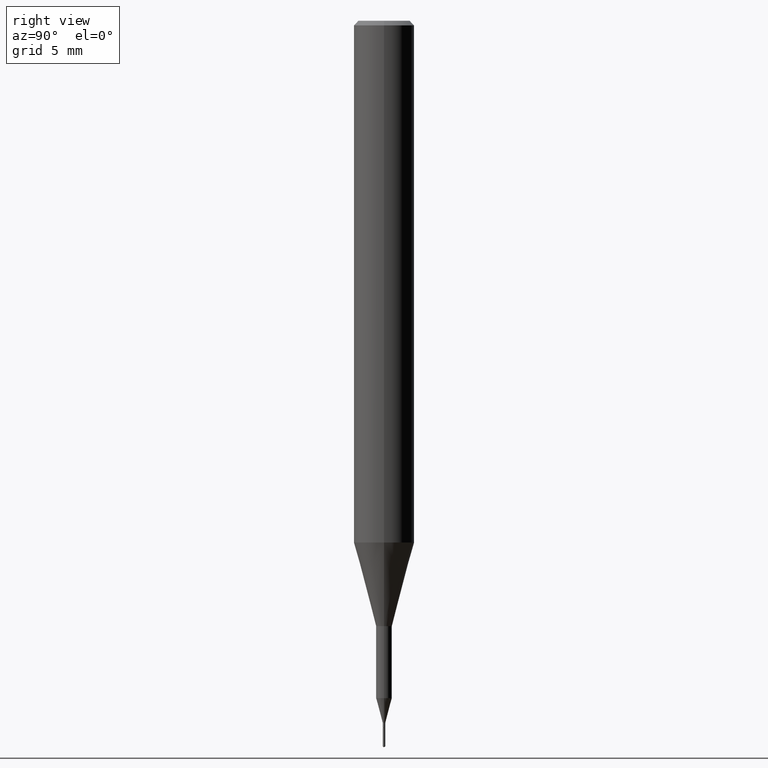
[diagram: clean part render]
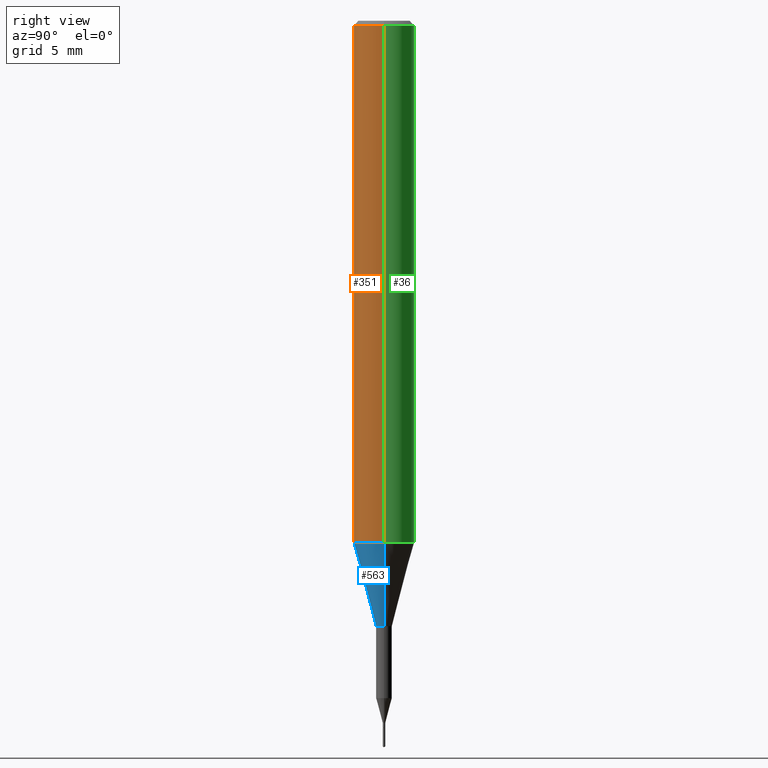
[diagram: same view with three faces highlighted in distinct colors, each labeled with its STEP entity id]
A machine part, right view with three faces highlighted in distinct colors.
Their STEP definitions:

[orange] entity #351 — the highlighted cylindrical surface (edge-blend (fillet) strip) has radius 1.5875 mm, axis along (-0, 0, 1).
#3 = DIRECTION ( 'NONE',  ( -2.445468806185136597E-29, 3.491481338843145583E-15, 1.000000000000000000 ) ) ;
#15 = DIRECTION ( 'NONE',  ( -2.445468806185136877E-29, 3.491481338843145188E-15, 1.000000000000000000 ) ) ;
#17 = EDGE_CURVE ( 'NONE', #294, #409, #252, .T. ) ;
#37 = DIRECTION ( 'NONE',  ( -2.445468806185136877E-29, 3.491481338843145188E-15, 1.000000000000000000 ) ) ;
#57 = EDGE_CURVE ( 'NONE', #409, #283, #205, .T. ) ;
#90 = AXIS2_PLACEMENT_3D ( 'NONE', #418, #3, #332 ) ;
#112 = AXIS2_PLACEMENT_3D ( 'NONE', #354, #225, #315 ) ;
#122 = CARTESIAN_POINT ( 'NONE',  ( 2.292627005798580623E-31, -3.273263755165470184E-17, -0.009375000000000060368 ) ) ;
#130 = FACE_OUTER_BOUND ( 'NONE', #498, .T. ) ;
#133 = CYLINDRICAL_SURFACE ( 'NONE', #112, 0.06250000000000006939 ) ;
#162 = CARTESIAN_POINT ( 'NONE',  ( 0.06250000000000012490, -4.198131499960668153E-15, -1.077392650149939346 ) ) ;
#178 = LINE ( 'NONE', #461, #199 ) ;
#188 = ORIENTED_EDGE ( 'NONE', *, *, #508, .T. ) ;
#190 = CARTESIAN_POINT ( 'NONE',  ( -0.06250000000000000000, -1.453125275228401137E-15, -0.009375000000000060368 ) ) ;
#199 = VECTOR ( 'NONE', #37, 39.37007874015748143 ) ;
#205 = CIRCLE ( 'NONE', #395, 0.06250000000000000000 ) ;
#225 = DIRECTION ( 'NONE',  ( -2.445468806185136597E-29, 3.491481338843145583E-15, 1.000000000000000000 ) ) ;
#252 = LINE ( 'NONE', #534, #363 ) ;
#259 = DIRECTION ( 'NONE',  ( 1.000000000000000000, -6.982962677686266711E-15, 0.000000000000000000 ) ) ;
#264 = CARTESIAN_POINT ( 'NONE',  ( 0.06250000000000000000, -4.691678049070463404E-16, -0.009375000000000060368 ) ) ;
#279 = VERTEX_POINT ( 'NONE', #162 ) ;
#283 = VERTEX_POINT ( 'NONE', #264 ) ;
#294 = VERTEX_POINT ( 'NONE', #480 ) ;
#297 = CIRCLE ( 'NONE', #90, 0.06250000000000012490 ) ;
#315 = DIRECTION ( 'NONE',  ( 1.000000000000000000, -6.982962677686266711E-15, 4.876176775795935793E-29 ) ) ;
#332 = DIRECTION ( 'NONE',  ( 1.000000000000000000, -6.982962677686264344E-15, 0.000000000000000000 ) ) ;
#351 = ADVANCED_FACE ( 'NONE', ( #130 ), #133, .T. ) ;
#354 = CARTESIAN_POINT ( 'NONE',  ( 0.000000000000000000, 0.000000000000000000, 0.000000000000000000 ) ) ;
#363 = VECTOR ( 'NONE', #15, 39.37007874015748143 ) ;
#369 = ORIENTED_EDGE ( 'NONE', *, *, #17, .F. ) ;
#395 = AXIS2_PLACEMENT_3D ( 'NONE', #122, #396, #259 ) ;
#396 = DIRECTION ( 'NONE',  ( -2.445468806185136597E-29, 3.491481338843145583E-15, 1.000000000000000000 ) ) ;
#409 = VERTEX_POINT ( 'NONE', #190 ) ;
#418 = CARTESIAN_POINT ( 'NONE',  ( 2.634730117954813298E-29, -3.761696332605275695E-15, -1.077392650149939346 ) ) ;
#430 = EDGE_CURVE ( 'NONE', #279, #283, #178, .T. ) ;
#461 = CARTESIAN_POINT ( 'NONE',  ( 0.06250000000000006939, -4.364351673553921624E-16, 3.047610484872463374E-30 ) ) ;
#480 = CARTESIAN_POINT ( 'NONE',  ( -0.06250000000000012490, -3.317607122755211895E-15, -1.077392650149939346 ) ) ;
#498 = EDGE_LOOP ( 'NONE', ( #369, #188, #510, #505 ) ) ;
#505 = ORIENTED_EDGE ( 'NONE', *, *, #57, .F. ) ;
#508 = EDGE_CURVE ( 'NONE', #294, #279, #297, .T. ) ;
#510 = ORIENTED_EDGE ( 'NONE', *, *, #430, .T. ) ;
#534 = CARTESIAN_POINT ( 'NONE',  ( -0.06250000000000006939, 4.440892098500631092E-16, -3.074334431409319267E-30 ) ) ;

[blue] entity #563 — the highlighted conical surface has half-angle 15 deg.
#3 = DIRECTION ( 'NONE',  ( -2.445468806185136597E-29, 3.491481338843145583E-15, 1.000000000000000000 ) ) ;
#20 = DIRECTION ( 'NONE',  ( 0.2588190451025214611, 1.565188264969621573E-15, 0.9659258262890682012 ) ) ;
#28 = EDGE_CURVE ( 'NONE', #324, #279, #70, .T. ) ;
#65 = FACE_OUTER_BOUND ( 'NONE', #172, .T. ) ;
#70 = LINE ( 'NONE', #357, #507 ) ;
#90 = AXIS2_PLACEMENT_3D ( 'NONE', #418, #3, #332 ) ;
#114 = EDGE_CURVE ( 'NONE', #546, #324, #556, .T. ) ;
#115 = CARTESIAN_POINT ( 'NONE',  ( 3.056836007731421306E-29, -4.364351673553932471E-15, -1.250000000000000000 ) ) ;
#162 = CARTESIAN_POINT ( 'NONE',  ( 0.06250000000000012490, -4.198131499960668153E-15, -1.077392650149939346 ) ) ;
#172 = EDGE_LOOP ( 'NONE', ( #540, #583, #421, #302 ) ) ;
#174 = VECTOR ( 'NONE', #524, 39.37007874015747433 ) ;
#187 = CONICAL_SURFACE ( 'NONE', #492, 0.06250000000000012490, 0.2617993877991501295 ) ;
#253 = DIRECTION ( 'NONE',  ( 1.000000000000000000, -6.982962677686264344E-15, 0.000000000000000000 ) ) ;
#268 = DIRECTION ( 'NONE',  ( 1.000000000000000000, -6.982962677686288799E-15, 0.000000000000000000 ) ) ;
#279 = VERTEX_POINT ( 'NONE', #162 ) ;
#294 = VERTEX_POINT ( 'NONE', #480 ) ;
#297 = CIRCLE ( 'NONE', #90, 0.06250000000000012490 ) ;
#301 = EDGE_CURVE ( 'NONE', #546, #294, #441, .T. ) ;
#302 = ORIENTED_EDGE ( 'NONE', *, *, #508, .F. ) ;
#324 = VERTEX_POINT ( 'NONE', #572 ) ;
#332 = DIRECTION ( 'NONE',  ( 1.000000000000000000, -6.982962677686264344E-15, 0.000000000000000000 ) ) ;
#357 = CARTESIAN_POINT ( 'NONE',  ( 0.06250000000000012490, -4.198131499960668153E-15, -1.077392650149939346 ) ) ;
#385 = DIRECTION ( 'NONE',  ( -2.445468806185136597E-29, 3.491481338843145583E-15, 1.000000000000000000 ) ) ;
#418 = CARTESIAN_POINT ( 'NONE',  ( 2.634730117954813298E-29, -3.761696332605275695E-15, -1.077392650149939346 ) ) ;
#421 = ORIENTED_EDGE ( 'NONE', *, *, #28, .T. ) ;
#441 = LINE ( 'NONE', #448, #174 ) ;
#443 = AXIS2_PLACEMENT_3D ( 'NONE', #115, #571, #268 ) ;
#448 = CARTESIAN_POINT ( 'NONE',  ( -0.06250000000000012490, -3.317607122755211895E-15, -1.077392650149939346 ) ) ;
#469 = CARTESIAN_POINT ( 'NONE',  ( -0.01624999999999999709, -4.508452710844322194E-15, -1.250000000000000000 ) ) ;
#474 = CARTESIAN_POINT ( 'NONE',  ( 2.634730117954813298E-29, -3.761696332605275695E-15, -1.077392650149939346 ) ) ;
#480 = CARTESIAN_POINT ( 'NONE',  ( -0.06250000000000012490, -3.317607122755211895E-15, -1.077392650149939346 ) ) ;
#492 = AXIS2_PLACEMENT_3D ( 'NONE', #474, #385, #253 ) ;
#507 = VECTOR ( 'NONE', #20, 39.37007874015747433 ) ;
#508 = EDGE_CURVE ( 'NONE', #294, #279, #297, .T. ) ;
#524 = DIRECTION ( 'NONE',  ( -0.2588190451025214611, 5.211531920934551042E-15, 0.9659258262890682012 ) ) ;
#540 = ORIENTED_EDGE ( 'NONE', *, *, #301, .F. ) ;
#546 = VERTEX_POINT ( 'NONE', #469 ) ;
#556 = CIRCLE ( 'NONE', #443, 0.01624999999999999709 ) ;
#563 = ADVANCED_FACE ( 'NONE', ( #65 ), #187, .T. ) ;
#571 = DIRECTION ( 'NONE',  ( -2.445468806185136597E-29, 3.491481338843145583E-15, 1.000000000000000000 ) ) ;
#572 = CARTESIAN_POINT ( 'NONE',  ( 0.01624999999999999709, -4.477824817066334148E-15, -1.250000000000000000 ) ) ;
#583 = ORIENTED_EDGE ( 'NONE', *, *, #114, .T. ) ;

[green] entity #36 — the highlighted cylindrical surface (edge-blend (fillet) strip) has radius 1.5875 mm, axis along (-0, 0, 1).
#15 = DIRECTION ( 'NONE',  ( -2.445468806185136877E-29, 3.491481338843145188E-15, 1.000000000000000000 ) ) ;
#17 = EDGE_CURVE ( 'NONE', #294, #409, #252, .T. ) ;
#36 = ADVANCED_FACE ( 'NONE', ( #431 ), #213, .T. ) ;
#37 = DIRECTION ( 'NONE',  ( -2.445468806185136877E-29, 3.491481338843145188E-15, 1.000000000000000000 ) ) ;
#64 = AXIS2_PLACEMENT_3D ( 'NONE', #440, #391, #476 ) ;
#111 = ORIENTED_EDGE ( 'NONE', *, *, #17, .T. ) ;
#162 = CARTESIAN_POINT ( 'NONE',  ( 0.06250000000000012490, -4.198131499960668153E-15, -1.077392650149939346 ) ) ;
#165 = CIRCLE ( 'NONE', #487, 0.06250000000000012490 ) ;
#178 = LINE ( 'NONE', #461, #199 ) ;
#190 = CARTESIAN_POINT ( 'NONE',  ( -0.06250000000000000000, -1.453125275228401137E-15, -0.009375000000000060368 ) ) ;
#193 = DIRECTION ( 'NONE',  ( -2.445468806185136597E-29, 3.491481338843145583E-15, 1.000000000000000000 ) ) ;
#199 = VECTOR ( 'NONE', #37, 39.37007874015748143 ) ;
#201 = ORIENTED_EDGE ( 'NONE', *, *, #430, .F. ) ;
#213 = CYLINDRICAL_SURFACE ( 'NONE', #64, 0.06250000000000006939 ) ;
#241 = EDGE_CURVE ( 'NONE', #279, #294, #165, .T. ) ;
#252 = LINE ( 'NONE', #534, #363 ) ;
#264 = CARTESIAN_POINT ( 'NONE',  ( 0.06250000000000000000, -4.691678049070463404E-16, -0.009375000000000060368 ) ) ;
#277 = AXIS2_PLACEMENT_3D ( 'NONE', #408, #193, #379 ) ;
#279 = VERTEX_POINT ( 'NONE', #162 ) ;
#283 = VERTEX_POINT ( 'NONE', #264 ) ;
#294 = VERTEX_POINT ( 'NONE', #480 ) ;
#337 = DIRECTION ( 'NONE',  ( -2.445468806185136597E-29, 3.491481338843145583E-15, 1.000000000000000000 ) ) ;
#338 = CIRCLE ( 'NONE', #277, 0.06250000000000000000 ) ;
#363 = VECTOR ( 'NONE', #15, 39.37007874015748143 ) ;
#372 = CARTESIAN_POINT ( 'NONE',  ( 2.634730117954813298E-29, -3.761696332605275695E-15, -1.077392650149939346 ) ) ;
#379 = DIRECTION ( 'NONE',  ( 1.000000000000000000, -6.982962677686266711E-15, 0.000000000000000000 ) ) ;
#391 = DIRECTION ( 'NONE',  ( -2.445468806185136597E-29, 3.491481338843145583E-15, 1.000000000000000000 ) ) ;
#408 = CARTESIAN_POINT ( 'NONE',  ( 2.292627005798580623E-31, -3.273263755165470184E-17, -0.009375000000000060368 ) ) ;
#409 = VERTEX_POINT ( 'NONE', #190 ) ;
#430 = EDGE_CURVE ( 'NONE', #279, #283, #178, .T. ) ;
#431 = FACE_OUTER_BOUND ( 'NONE', #585, .T. ) ;
#440 = CARTESIAN_POINT ( 'NONE',  ( 0.000000000000000000, 0.000000000000000000, 0.000000000000000000 ) ) ;
#461 = CARTESIAN_POINT ( 'NONE',  ( 0.06250000000000006939, -4.364351673553921624E-16, 3.047610484872463374E-30 ) ) ;
#463 = ORIENTED_EDGE ( 'NONE', *, *, #527, .F. ) ;
#475 = ORIENTED_EDGE ( 'NONE', *, *, #241, .T. ) ;
#476 = DIRECTION ( 'NONE',  ( 1.000000000000000000, -6.982962677686266711E-15, 4.876176775795935793E-29 ) ) ;
#480 = CARTESIAN_POINT ( 'NONE',  ( -0.06250000000000012490, -3.317607122755211895E-15, -1.077392650149939346 ) ) ;
#487 = AXIS2_PLACEMENT_3D ( 'NONE', #372, #337, #511 ) ;
#511 = DIRECTION ( 'NONE',  ( 1.000000000000000000, -6.982962677686264344E-15, 0.000000000000000000 ) ) ;
#527 = EDGE_CURVE ( 'NONE', #283, #409, #338, .T. ) ;
#534 = CARTESIAN_POINT ( 'NONE',  ( -0.06250000000000006939, 4.440892098500631092E-16, -3.074334431409319267E-30 ) ) ;
#585 = EDGE_LOOP ( 'NONE', ( #475, #111, #463, #201 ) ) ;